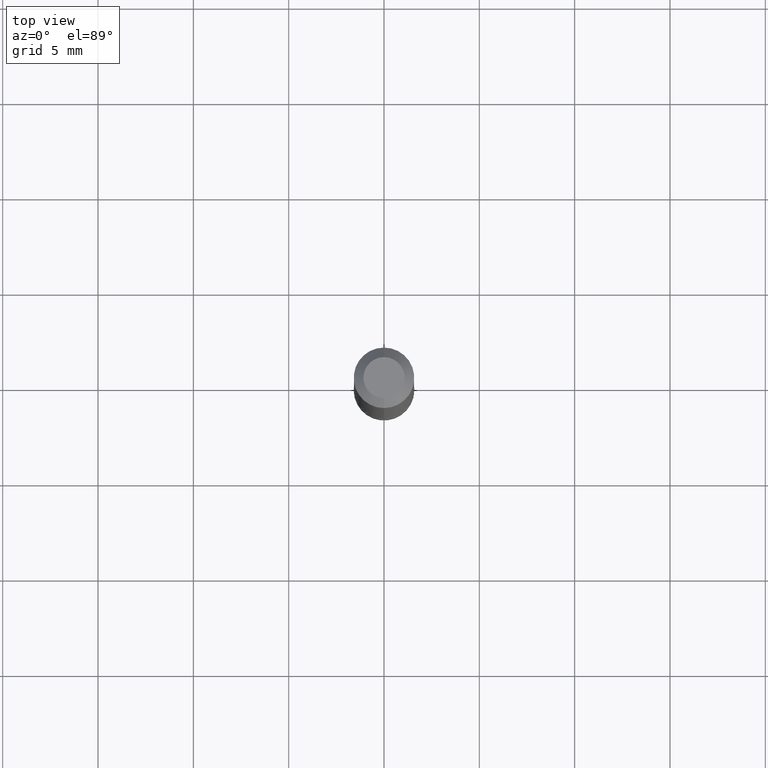
[diagram: clean part render]
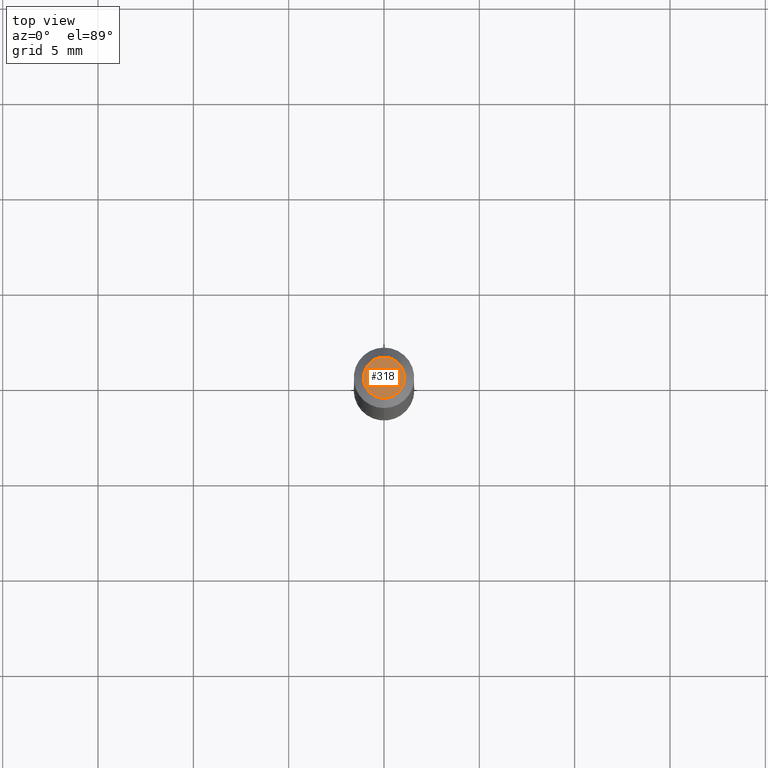
[diagram: same view with one face highlighted and labeled with its STEP entity id]
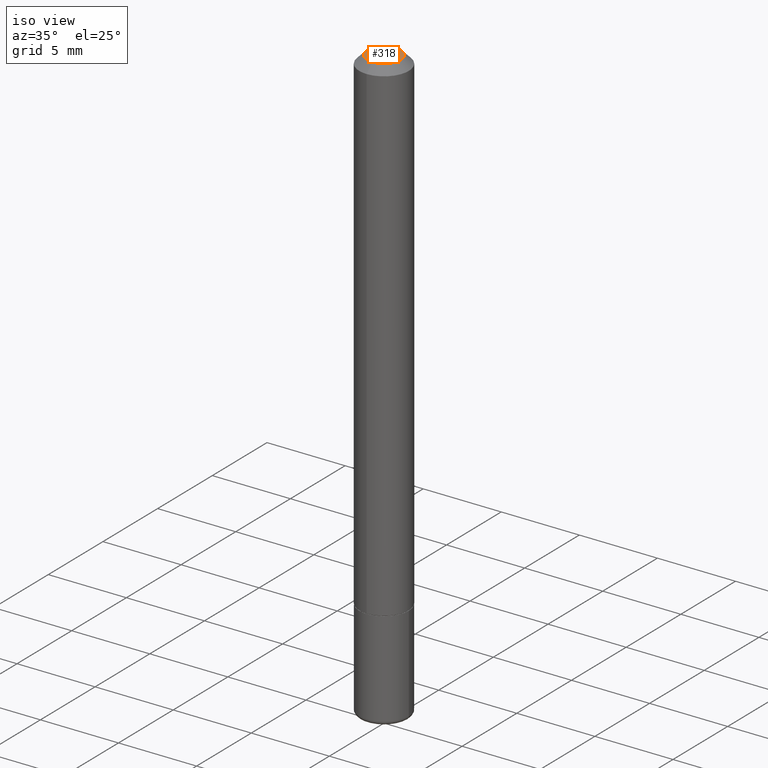
[diagram: same view with one face highlighted and labeled with its STEP entity id]
A machine part, top view. The second image highlights one B-rep face of the part: STEP entity #318.
A second angle (iso view) of the same face is appended — the face is thin or edge-on in the first view.
In plain terms, the highlighted planar face has unit normal (0, -0, -1).
Its self-contained STEP definition (entity closure, byte-faithful):
#1 = DIRECTION ( 'NONE',  ( -6.982962677686265922E-15, -1.000000000000000000, 3.465099818506815949E-15 ) ) ;
#13 = AXIS2_PLACEMENT_3D ( 'NONE', #352, #285, #1 ) ;
#23 = PLANE ( 'NONE',  #295 ) ;
#37 = CIRCLE ( 'NONE', #60, 0.04250000000000002387 ) ;
#55 = CARTESIAN_POINT ( 'NONE',  ( -3.601761448830052926E-16, -0.04250000000000002387, 1.205344527316432809E-16 ) ) ;
#60 = AXIS2_PLACEMENT_3D ( 'NONE', #107, #78, #340 ) ;
#78 = DIRECTION ( 'NONE',  ( -2.463890923374057666E-29, 3.465099818506815949E-15, 1.000000000000000000 ) ) ;
#107 = CARTESIAN_POINT ( 'NONE',  ( 6.586544559531654856E-46, -9.263005168494343437E-32, -2.673228955489647487E-17 ) ) ;
#115 = CIRCLE ( 'NONE', #13, 0.04250000000000002387 ) ;
#183 = CARTESIAN_POINT ( 'NONE',  ( 2.967759138016664535E-16, 0.04250000000000002387, -1.606328870639880302E-16 ) ) ;
#212 = DIRECTION ( 'NONE',  ( 6.982962677686265922E-15, 1.000000000000000000, -3.465099818506815949E-15 ) ) ;
#234 = EDGE_CURVE ( 'NONE', #342, #361, #37, .T. ) ;
#245 = DIRECTION ( 'NONE',  ( 2.463890923374057386E-29, -3.465099818506815949E-15, -1.000000000000000000 ) ) ;
#248 = EDGE_CURVE ( 'NONE', #361, #342, #115, .T. ) ;
#249 = FACE_OUTER_BOUND ( 'NONE', #303, .T. ) ;
#259 = ORIENTED_EDGE ( 'NONE', *, *, #234, .T. ) ;
#285 = DIRECTION ( 'NONE',  ( -2.463890923374057666E-29, 3.465099818506815949E-15, 1.000000000000000000 ) ) ;
#295 = AXIS2_PLACEMENT_3D ( 'NONE', #183, #245, #212 ) ;
#303 = EDGE_LOOP ( 'NONE', ( #385, #259 ) ) ;
#318 = ADVANCED_FACE ( 'NONE', ( #249 ), #23, .F. ) ;
#340 = DIRECTION ( 'NONE',  ( -6.982962677686265922E-15, -1.000000000000000000, 3.465099818506815949E-15 ) ) ;
#342 = VERTEX_POINT ( 'NONE', #55 ) ;
#352 = CARTESIAN_POINT ( 'NONE',  ( 6.586544559531654856E-46, -9.263005168494343437E-32, -2.673228955489647487E-17 ) ) ;
#361 = VERTEX_POINT ( 'NONE', #398 ) ;
#385 = ORIENTED_EDGE ( 'NONE', *, *, #248, .T. ) ;
#398 = CARTESIAN_POINT ( 'NONE',  ( 3.666055405785293080E-16, 0.04250000000000002387, -1.739990318414362306E-16 ) ) ;